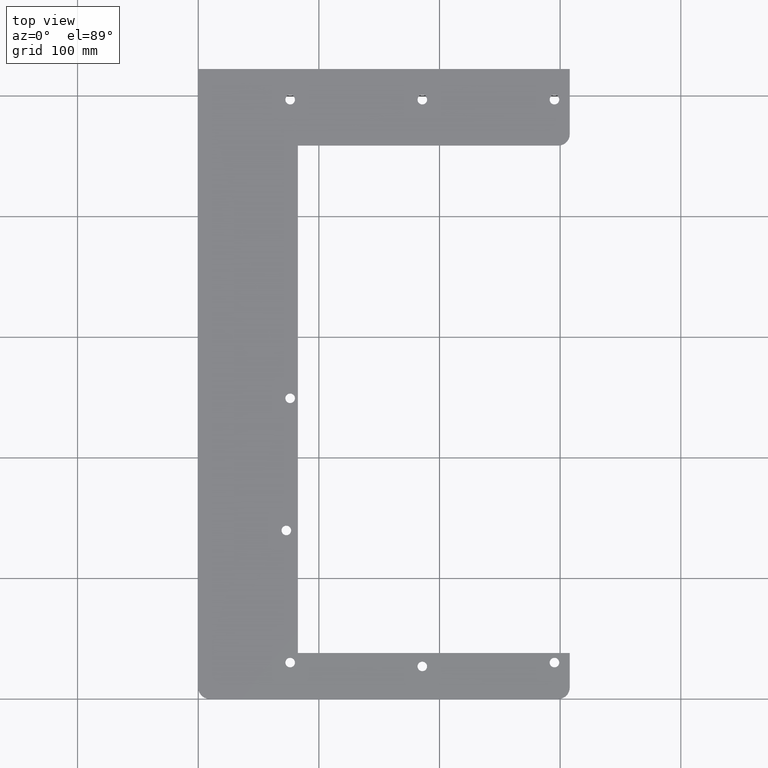
[diagram: clean part render]
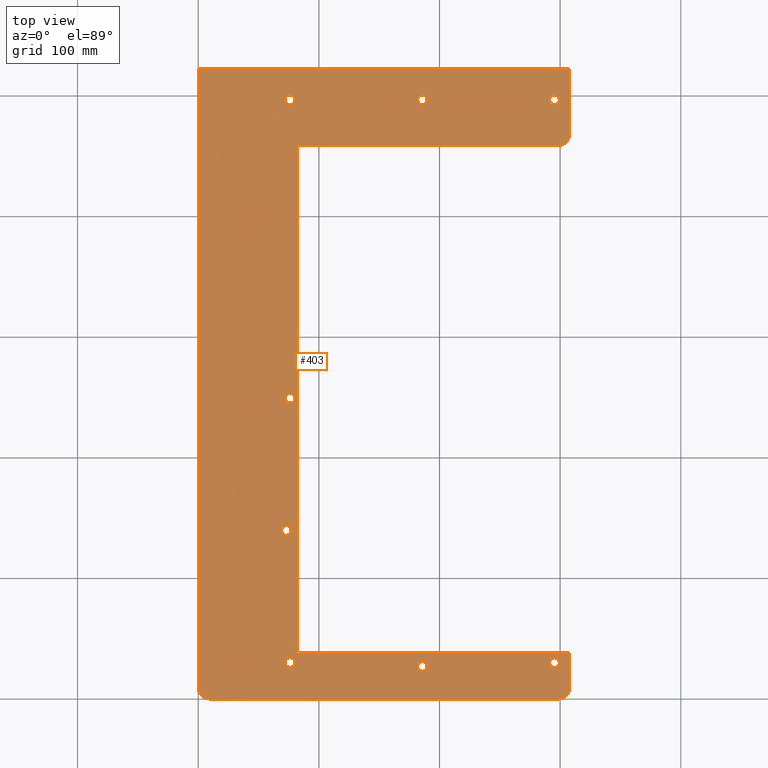
[diagram: same view with one face highlighted and labeled with its STEP entity id]
A machine part, top view. The second image highlights one B-rep face of the part: STEP entity #403.
In plain terms, the highlighted planar face has unit normal (0, 0, 1).
Its self-contained STEP definition (entity closure, byte-faithful):
#1 = CARTESIAN_POINT ( 'NONE',  ( 3.250000000000003997, 0.0000000000000000000, 0.1000000000000000056 ) ) ;
#2 = VERTEX_POINT ( 'NONE', #110 ) ;
#6 = CIRCLE ( 'NONE', #446, 0.1562500000000008327 ) ;
#9 = DIRECTION ( 'NONE',  ( -0.0000000000000000000, -0.0000000000000000000, -1.000000000000000000 ) ) ;
#15 = EDGE_CURVE ( 'NONE', #389, #518, #517, .T. ) ;
#17 = DIRECTION ( 'NONE',  ( -0.0000000000000000000, -0.0000000000000000000, 1.000000000000000000 ) ) ;
#19 = DIRECTION ( 'NONE',  ( -0.0000000000000000000, -0.0000000000000000000, -1.000000000000000000 ) ) ;
#26 = ORIENTED_EDGE ( 'NONE', *, *, #666, .T. ) ;
#33 = EDGE_CURVE ( 'NONE', #431, #431, #523, .T. ) ;
#35 = CARTESIAN_POINT ( 'NONE',  ( 11.75000000000000000, 18.06000000000000227, 0.1000000000000000056 ) ) ;
#37 = EDGE_CURVE ( 'NONE', #399, #2, #620, .T. ) ;
#45 = CIRCLE ( 'NONE', #500, 0.1562499999999997224 ) ;
#51 = CIRCLE ( 'NONE', #341, 0.1562499999999997224 ) ;
#53 = EDGE_LOOP ( 'NONE', ( #354 ) ) ;
#57 = EDGE_LOOP ( 'NONE', ( #308 ) ) ;
#61 = CARTESIAN_POINT ( 'NONE',  ( 1.381182328356955297E-16, 20.56000000000000227, 0.1000000000000000056 ) ) ;
#64 = VERTEX_POINT ( 'NONE', #580 ) ;
#65 = LINE ( 'NONE', #649, #537 ) ;
#76 = CARTESIAN_POINT ( 'NONE',  ( 11.75000000000000000, 0.0000000000000000000, 0.1000000000000000056 ) ) ;
#78 = CARTESIAN_POINT ( 'NONE',  ( 3.000000000000007994, 9.812500000000001776, 0.09999999999999947820 ) ) ;
#87 = DIRECTION ( 'NONE',  ( 1.000000000000000000, 0.0000000000000000000, 0.0000000000000000000 ) ) ;
#95 = CARTESIAN_POINT ( 'NONE',  ( 12.12500000000000178, 18.43500000000000227, 0.1000000000000000056 ) ) ;
#96 = CARTESIAN_POINT ( 'NONE',  ( 3.031250000000004441, 5.500000000000000000, 0.09999999999999947820 ) ) ;
#97 = LINE ( 'NONE', #498, #505 ) ;
#101 = AXIS2_PLACEMENT_3D ( 'NONE', #422, #17, #600 ) ;
#109 = CARTESIAN_POINT ( 'NONE',  ( 0.0000000000000000000, 0.0000000000000000000, 0.1000000000000000056 ) ) ;
#110 = CARTESIAN_POINT ( 'NONE',  ( 0.3750000000000007772, 0.0000000000000000000, 0.1000000000000000056 ) ) ;
#114 = VERTEX_POINT ( 'NONE', #592 ) ;
#128 = CARTESIAN_POINT ( 'NONE',  ( 12.12500000000000178, 0.3750000000000000555, 0.1000000000000000056 ) ) ;
#134 = DIRECTION ( 'NONE',  ( -0.0000000000000000000, -0.0000000000000000000, -1.000000000000000000 ) ) ;
#138 = CIRCLE ( 'NONE', #235, 0.1562500000000008327 ) ;
#139 = DIRECTION ( 'NONE',  ( -0.0000000000000000000, 1.000000000000000000, 0.0000000000000000000 ) ) ;
#143 = CARTESIAN_POINT ( 'NONE',  ( 3.756290991288361679E-16, 0.3750000000000000555, 0.1000000000000000056 ) ) ;
#146 = DIRECTION ( 'NONE',  ( -1.000000000000000000, 0.0000000000000000000, 0.0000000000000000000 ) ) ;
#153 = DIRECTION ( 'NONE',  ( -1.000000000000000000, -0.0000000000000000000, 0.0000000000000000000 ) ) ;
#157 = LINE ( 'NONE', #263, #186 ) ;
#161 = DIRECTION ( 'NONE',  ( 0.0000000000000000000, -1.000000000000000000, -0.0000000000000000000 ) ) ;
#177 = ORIENTED_EDGE ( 'NONE', *, *, #37, .T. ) ;
#178 = ORIENTED_EDGE ( 'NONE', *, *, #387, .T. ) ;
#179 = VERTEX_POINT ( 'NONE', #76 ) ;
#180 = DIRECTION ( 'NONE',  ( 1.000000000000000000, 0.0000000000000000000, 0.0000000000000000000 ) ) ;
#181 = VERTEX_POINT ( 'NONE', #228 ) ;
#186 = VECTOR ( 'NONE', #153, 39.37007874015748143 ) ;
#192 = EDGE_CURVE ( 'NONE', #179, #665, #522, .T. ) ;
#196 = CIRCLE ( 'NONE', #288, 0.1562499999999997224 ) ;
#199 = VECTOR ( 'NONE', #539, 39.37007874015748143 ) ;
#202 = AXIS2_PLACEMENT_3D ( 'NONE', #407, #9, #339 ) ;
#203 = DIRECTION ( 'NONE',  ( -0.0000000000000000000, -0.0000000000000000000, -1.000000000000000000 ) ) ;
#207 = VERTEX_POINT ( 'NONE', #434 ) ;
#212 = DIRECTION ( 'NONE',  ( 1.000000000000000000, 0.0000000000000000000, -0.0000000000000000000 ) ) ;
#216 = DIRECTION ( 'NONE',  ( -0.0000000000000000000, -0.0000000000000000000, 1.000000000000000000 ) ) ;
#220 = DIRECTION ( 'NONE',  ( 1.000000000000000000, 0.0000000000000000000, -0.0000000000000000000 ) ) ;
#227 = ORIENTED_EDGE ( 'NONE', *, *, #306, .T. ) ;
#228 = CARTESIAN_POINT ( 'NONE',  ( 11.78125000000000178, 19.56000000000000227, 0.09999999999999947820 ) ) ;
#235 = AXIS2_PLACEMENT_3D ( 'NONE', #655, #19, #180 ) ;
#237 = VECTOR ( 'NONE', #344, 39.37007874015748143 ) ;
#247 = EDGE_CURVE ( 'NONE', #318, #399, #699, .T. ) ;
#259 = CARTESIAN_POINT ( 'NONE',  ( 3.000000000000007994, 1.187500000000000000, 0.09999999999999947820 ) ) ;
#263 = CARTESIAN_POINT ( 'NONE',  ( 6.658879484556653798E-16, 20.56000000000000227, 0.1000000000000000056 ) ) ;
#267 = FACE_BOUND ( 'NONE', #460, .T. ) ;
#283 = VERTEX_POINT ( 'NONE', #698 ) ;
#285 = EDGE_LOOP ( 'NONE', ( #449 ) ) ;
#288 = AXIS2_PLACEMENT_3D ( 'NONE', #299, #602, #315 ) ;
#292 = ORIENTED_EDGE ( 'NONE', *, *, #379, .T. ) ;
#297 = AXIS2_PLACEMENT_3D ( 'NONE', #575, #524, #566 ) ;
#299 = CARTESIAN_POINT ( 'NONE',  ( 7.312500000000000888, 1.062500000000000000, 0.09999999999999947820 ) ) ;
#303 = DIRECTION ( 'NONE',  ( -0.0000000000000000000, -0.0000000000000000000, -1.000000000000000000 ) ) ;
#306 = EDGE_CURVE ( 'NONE', #2, #179, #737, .T. ) ;
#308 = ORIENTED_EDGE ( 'NONE', *, *, #350, .T. ) ;
#310 = VECTOR ( 'NONE', #220, 39.37007874015748143 ) ;
#315 = DIRECTION ( 'NONE',  ( 1.000000000000000000, 0.0000000000000000000, 0.0000000000000000000 ) ) ;
#317 = DIRECTION ( 'NONE',  ( -0.0000000000000000000, -0.0000000000000000000, -1.000000000000000000 ) ) ;
#318 = VERTEX_POINT ( 'NONE', #61 ) ;
#323 = CARTESIAN_POINT ( 'NONE',  ( 11.78125000000000178, 1.187500000000000000, 0.09999999999999947820 ) ) ;
#324 = FACE_BOUND ( 'NONE', #679, .T. ) ;
#327 = DIRECTION ( 'NONE',  ( 1.000000000000000000, 0.0000000000000000000, -0.0000000000000000000 ) ) ;
#337 = CARTESIAN_POINT ( 'NONE',  ( 3.156250000000007994, 9.812500000000001776, 0.09999999999999947820 ) ) ;
#339 = DIRECTION ( 'NONE',  ( 1.000000000000000000, 0.0000000000000000000, 0.0000000000000000000 ) ) ;
#341 = AXIS2_PLACEMENT_3D ( 'NONE', #360, #303, #367 ) ;
#342 = AXIS2_PLACEMENT_3D ( 'NONE', #78, #134, #661 ) ;
#344 = DIRECTION ( 'NONE',  ( -0.0000000000000000000, 1.000000000000000000, 0.0000000000000000000 ) ) ;
#350 = EDGE_CURVE ( 'NONE', #378, #378, #6, .T. ) ;
#354 = ORIENTED_EDGE ( 'NONE', *, *, #621, .T. ) ;
#360 = CARTESIAN_POINT ( 'NONE',  ( 3.000000000000003997, 19.56000000000000227, 0.09999999999999947820 ) ) ;
#363 = EDGE_LOOP ( 'NONE', ( #26 ) ) ;
#367 = DIRECTION ( 'NONE',  ( 1.000000000000000000, 0.0000000000000000000, 0.0000000000000000000 ) ) ;
#376 = DIRECTION ( 'NONE',  ( 0.0000000000000000000, 0.0000000000000000000, 1.000000000000000000 ) ) ;
#378 = VERTEX_POINT ( 'NONE', #323 ) ;
#379 = EDGE_CURVE ( 'NONE', #114, #318, #157, .T. ) ;
#380 = FACE_BOUND ( 'NONE', #562, .T. ) ;
#384 = FACE_OUTER_BOUND ( 'NONE', #642, .T. ) ;
#386 = FACE_BOUND ( 'NONE', #285, .T. ) ;
#387 = EDGE_CURVE ( 'NONE', #454, #408, #549, .T. ) ;
#389 = VERTEX_POINT ( 'NONE', #551 ) ;
#394 = ORIENTED_EDGE ( 'NONE', *, *, #689, .T. ) ;
#395 = ORIENTED_EDGE ( 'NONE', *, *, #558, .T. ) ;
#399 = VERTEX_POINT ( 'NONE', #143 ) ;
#402 = DIRECTION ( 'NONE',  ( -0.0000000000000000000, -0.0000000000000000000, -1.000000000000000000 ) ) ;
#403 = ADVANCED_FACE ( 'NONE', ( #384, #324, #386, #723, #668, #267, #380, #444, #730 ), #673, .T. ) ;
#407 = CARTESIAN_POINT ( 'NONE',  ( 2.875000000000003997, 5.500000000000000000, 0.09999999999999947820 ) ) ;
#408 = VERTEX_POINT ( 'NONE', #95 ) ;
#413 = ORIENTED_EDGE ( 'NONE', *, *, #33, .T. ) ;
#415 = CIRCLE ( 'NONE', #342, 0.1562500000000002776 ) ;
#419 = DIRECTION ( 'NONE',  ( -0.0000000000000000000, 1.000000000000000000, 0.0000000000000000000 ) ) ;
#422 = CARTESIAN_POINT ( 'NONE',  ( 11.75000000000000000, 0.3750000000000000555, 0.1000000000000000056 ) ) ;
#427 = AXIS2_PLACEMENT_3D ( 'NONE', #613, #376, #212 ) ;
#431 = VERTEX_POINT ( 'NONE', #96 ) ;
#434 = CARTESIAN_POINT ( 'NONE',  ( 3.156250000000003997, 19.56000000000000227, 0.09999999999999947820 ) ) ;
#436 = CARTESIAN_POINT ( 'NONE',  ( 11.75000000000000000, 18.43500000000000227, 0.1000000000000000056 ) ) ;
#444 = FACE_BOUND ( 'NONE', #363, .T. ) ;
#446 = AXIS2_PLACEMENT_3D ( 'NONE', #688, #402, #516 ) ;
#449 = ORIENTED_EDGE ( 'NONE', *, *, #725, .T. ) ;
#451 = EDGE_CURVE ( 'NONE', #518, #454, #97, .T. ) ;
#454 = VERTEX_POINT ( 'NONE', #35 ) ;
#460 = EDGE_LOOP ( 'NONE', ( #394 ) ) ;
#462 = VERTEX_POINT ( 'NONE', #640 ) ;
#464 = ORIENTED_EDGE ( 'NONE', *, *, #451, .T. ) ;
#467 = VERTEX_POINT ( 'NONE', #337 ) ;
#471 = CARTESIAN_POINT ( 'NONE',  ( 6.658879484556653798E-16, 1.500000000000000222, 0.1000000000000000056 ) ) ;
#481 = VECTOR ( 'NONE', #139, 39.37007874015748143 ) ;
#482 = DIRECTION ( 'NONE',  ( 1.000000000000000000, 0.0000000000000000000, 0.0000000000000000000 ) ) ;
#483 = ORIENTED_EDGE ( 'NONE', *, *, #625, .T. ) ;
#498 = CARTESIAN_POINT ( 'NONE',  ( 6.658879484556653798E-16, 18.06000000000000227, 0.1000000000000000056 ) ) ;
#500 = AXIS2_PLACEMENT_3D ( 'NONE', #728, #203, #482 ) ;
#504 = EDGE_CURVE ( 'NONE', #207, #207, #51, .T. ) ;
#505 = VECTOR ( 'NONE', #327, 39.37007874015748143 ) ;
#510 = VERTEX_POINT ( 'NONE', #583 ) ;
#516 = DIRECTION ( 'NONE',  ( 1.000000000000000000, 0.0000000000000000000, 0.0000000000000000000 ) ) ;
#517 = LINE ( 'NONE', #1, #237 ) ;
#518 = VERTEX_POINT ( 'NONE', #534 ) ;
#522 = CIRCLE ( 'NONE', #101, 0.3750000000000002220 ) ;
#523 = CIRCLE ( 'NONE', #202, 0.1562500000000002776 ) ;
#524 = DIRECTION ( 'NONE',  ( -0.0000000000000000000, -0.0000000000000000000, 1.000000000000000000 ) ) ;
#528 = ORIENTED_EDGE ( 'NONE', *, *, #670, .T. ) ;
#531 = AXIS2_PLACEMENT_3D ( 'NONE', #259, #317, #87 ) ;
#534 = CARTESIAN_POINT ( 'NONE',  ( 3.250000000000003997, 18.05999999999999872, 0.1000000000000000056 ) ) ;
#537 = VECTOR ( 'NONE', #419, 39.37007874015748143 ) ;
#539 = DIRECTION ( 'NONE',  ( -1.000000000000000000, -0.0000000000000000000, 0.0000000000000000000 ) ) ;
#549 = CIRCLE ( 'NONE', #663, 0.3750000000000002220 ) ;
#551 = CARTESIAN_POINT ( 'NONE',  ( 3.250000000000004441, 1.500000000000000444, 0.1000000000000000056 ) ) ;
#558 = EDGE_CURVE ( 'NONE', #665, #64, #65, .T. ) ;
#562 = EDGE_LOOP ( 'NONE', ( #576 ) ) ;
#564 = ORIENTED_EDGE ( 'NONE', *, *, #747, .T. ) ;
#566 = DIRECTION ( 'NONE',  ( -1.000000000000000000, 0.0000000000000000000, 0.0000000000000000000 ) ) ;
#575 = CARTESIAN_POINT ( 'NONE',  ( 0.3750000000000007772, 0.3750000000000000555, 0.1000000000000000056 ) ) ;
#576 = ORIENTED_EDGE ( 'NONE', *, *, #504, .T. ) ;
#580 = CARTESIAN_POINT ( 'NONE',  ( 12.12500000000000178, 1.500000000000000222, 0.1000000000000000056 ) ) ;
#583 = CARTESIAN_POINT ( 'NONE',  ( 3.156250000000007994, 1.187500000000000000, 0.09999999999999947820 ) ) ;
#586 = LINE ( 'NONE', #471, #199 ) ;
#587 = VECTOR ( 'NONE', #161, 39.37007874015748143 ) ;
#590 = ORIENTED_EDGE ( 'NONE', *, *, #15, .T. ) ;
#592 = CARTESIAN_POINT ( 'NONE',  ( 12.12500000000000178, 20.56000000000000227, 0.1000000000000000056 ) ) ;
#600 = DIRECTION ( 'NONE',  ( -1.000000000000000000, 0.0000000000000000000, 0.0000000000000000000 ) ) ;
#602 = DIRECTION ( 'NONE',  ( -0.0000000000000000000, -0.0000000000000000000, -1.000000000000000000 ) ) ;
#613 = CARTESIAN_POINT ( 'NONE',  ( 6.658879484556653798E-16, 0.0000000000000000000, 0.1000000000000000056 ) ) ;
#620 = CIRCLE ( 'NONE', #297, 0.3750000000000000555 ) ;
#621 = EDGE_CURVE ( 'NONE', #181, #181, #138, .T. ) ;
#625 = EDGE_CURVE ( 'NONE', #64, #389, #586, .T. ) ;
#636 = CARTESIAN_POINT ( 'NONE',  ( 6.658879484556653798E-16, 0.0000000000000000000, 0.1000000000000000056 ) ) ;
#640 = CARTESIAN_POINT ( 'NONE',  ( 7.468750000000000888, 1.062500000000000000, 0.09999999999999947820 ) ) ;
#642 = EDGE_LOOP ( 'NONE', ( #483, #590, #464, #178, #564, #292, #722, #177, #227, #683, #395 ) ) ;
#649 = CARTESIAN_POINT ( 'NONE',  ( 12.12500000000000178, 0.0000000000000000000, 0.1000000000000000056 ) ) ;
#655 = CARTESIAN_POINT ( 'NONE',  ( 11.62500000000000000, 19.56000000000000227, 0.09999999999999947820 ) ) ;
#661 = DIRECTION ( 'NONE',  ( 1.000000000000000000, 0.0000000000000000000, 0.0000000000000000000 ) ) ;
#663 = AXIS2_PLACEMENT_3D ( 'NONE', #436, #216, #146 ) ;
#665 = VERTEX_POINT ( 'NONE', #128 ) ;
#666 = EDGE_CURVE ( 'NONE', #467, #467, #415, .T. ) ;
#667 = CARTESIAN_POINT ( 'NONE',  ( 12.12500000000000178, 0.0000000000000000000, 0.1000000000000000056 ) ) ;
#668 = FACE_BOUND ( 'NONE', #53, .T. ) ;
#669 = LINE ( 'NONE', #667, #481 ) ;
#670 = EDGE_CURVE ( 'NONE', #462, #462, #196, .T. ) ;
#673 = PLANE ( 'NONE',  #427 ) ;
#679 = EDGE_LOOP ( 'NONE', ( #528 ) ) ;
#683 = ORIENTED_EDGE ( 'NONE', *, *, #192, .T. ) ;
#688 = CARTESIAN_POINT ( 'NONE',  ( 11.62500000000000000, 1.187500000000000000, 0.09999999999999947820 ) ) ;
#689 = EDGE_CURVE ( 'NONE', #283, #283, #45, .T. ) ;
#696 = EDGE_LOOP ( 'NONE', ( #413 ) ) ;
#698 = CARTESIAN_POINT ( 'NONE',  ( 7.468750000000000888, 19.56000000000000227, 0.09999999999999947820 ) ) ;
#699 = LINE ( 'NONE', #109, #587 ) ;
#722 = ORIENTED_EDGE ( 'NONE', *, *, #247, .T. ) ;
#723 = FACE_BOUND ( 'NONE', #696, .T. ) ;
#725 = EDGE_CURVE ( 'NONE', #510, #510, #734, .T. ) ;
#728 = CARTESIAN_POINT ( 'NONE',  ( 7.312500000000000888, 19.56000000000000227, 0.09999999999999947820 ) ) ;
#730 = FACE_BOUND ( 'NONE', #57, .T. ) ;
#734 = CIRCLE ( 'NONE', #531, 0.1562500000000002776 ) ;
#737 = LINE ( 'NONE', #636, #310 ) ;
#747 = EDGE_CURVE ( 'NONE', #408, #114, #669, .T. ) ;